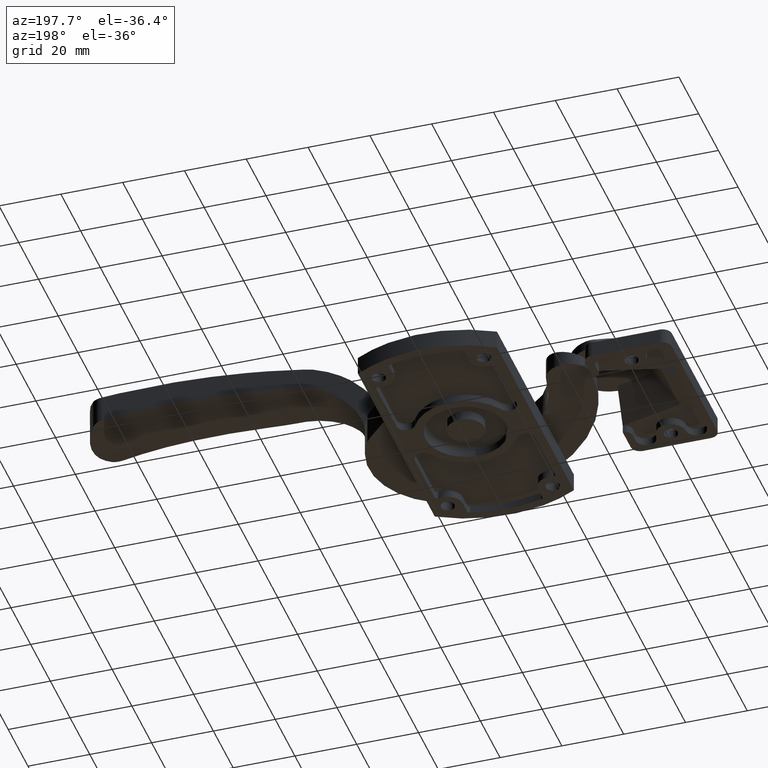
[diagram: clean part render]
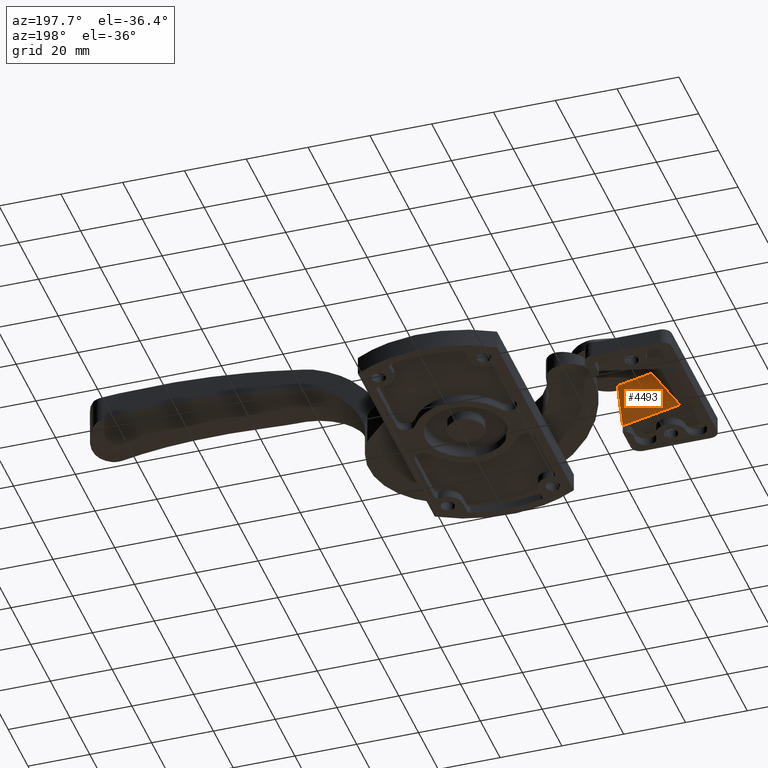
[diagram: same view with one face highlighted and labeled with its STEP entity id]
A machine part, auxiliary view. The second image highlights one B-rep face of the part: STEP entity #4493.
In plain terms, the highlighted face is a freeform B-spline surface patch.
Its self-contained STEP definition (entity closure, byte-faithful):
#2472=CARTESIAN_POINT('',(66.088194915378097,9.819908408735921,2.499999999999945));
#2473=VERTEX_POINT('',#2472);
#3373=CARTESIAN_POINT('',(46.0,9.493105185733320,14.0));
#3374=VERTEX_POINT('',#3373);
#3380=CARTESIAN_POINT('',(58.035808043355800,6.475952998261870,14.0));
#3381=VERTEX_POINT('',#3380);
#3382=CARTESIAN_POINT('',(58.035808043355800,6.475952998261870,14.0));
#3383=CARTESIAN_POINT('',(46.0,9.493105185733320,14.0));
#3384=QUASI_UNIFORM_CURVE('',1,(#3382,#3383),.UNSPECIFIED.,.F.,.U.);
#3385=EDGE_CURVE('',#3381,#3374,#3384,.T.);
#4463=CARTESIAN_POINT('',(66.088194915378097,9.819908408735921,2.499999999999945));
#4464=CARTESIAN_POINT('',(58.035808043355800,6.475952998261870,14.0));
#4465=QUASI_UNIFORM_CURVE('',1,(#4463,#4464),.UNSPECIFIED.,.F.,.U.);
#4466=EDGE_CURVE('',#2473,#3381,#4465,.T.);
#4472=CARTESIAN_POINT('',(44.996594702911672,15.357028664832720,1.964194588657468));
#4473=CARTESIAN_POINT('',(44.996594702911672,8.866056225964419,15.884129199351570));
#4474=CARTESIAN_POINT('',(67.091600751273759,10.807488493256971,-0.157290941923615));
#4475=CARTESIAN_POINT('',(67.091600751273759,4.316516054388668,13.762643668770490));
#4476=B_SPLINE_SURFACE_WITH_KNOTS('',1,1,((#4472,#4474),(#4473,#4475)),.UNSPECIFIED.,.F.,.F.,.U.,(2,2),(2,2),(0.0,15.358948621834349),(0.0,22.658073812802439),.UNSPECIFIED.);
#4477=ORIENTED_EDGE('',*,*,#4466,.T.);
#4478=ORIENTED_EDGE('',*,*,#3385,.T.);
#4479=CARTESIAN_POINT('',(46.0,14.855643526225039,2.499999999999960));
#4480=VERTEX_POINT('',#4479);
#4481=CARTESIAN_POINT('',(46.0,14.855643526225039,2.499999999999960));
#4482=CARTESIAN_POINT('',(46.0,9.493105185733320,14.0));
#4483=QUASI_UNIFORM_CURVE('',1,(#4481,#4482),.UNSPECIFIED.,.F.,.U.);
#4484=EDGE_CURVE('',#4480,#3374,#4483,.T.);
#4485=ORIENTED_EDGE('',*,*,#4484,.F.);
#4486=CARTESIAN_POINT('',(46.0,14.855643526225039,2.499999999999960));
#4487=CARTESIAN_POINT('',(66.088194915378097,9.819908408735921,2.499999999999945));
#4488=QUASI_UNIFORM_CURVE('',1,(#4486,#4487),.UNSPECIFIED.,.F.,.U.);
#4489=EDGE_CURVE('',#4480,#2473,#4488,.T.);
#4490=ORIENTED_EDGE('',*,*,#4489,.T.);
#4491=EDGE_LOOP('',(#4477,#4478,#4485,#4490));
#4492=FACE_OUTER_BOUND('',#4491,.T.);
#4493=ADVANCED_FACE('',(#4492),#4476,.F.);